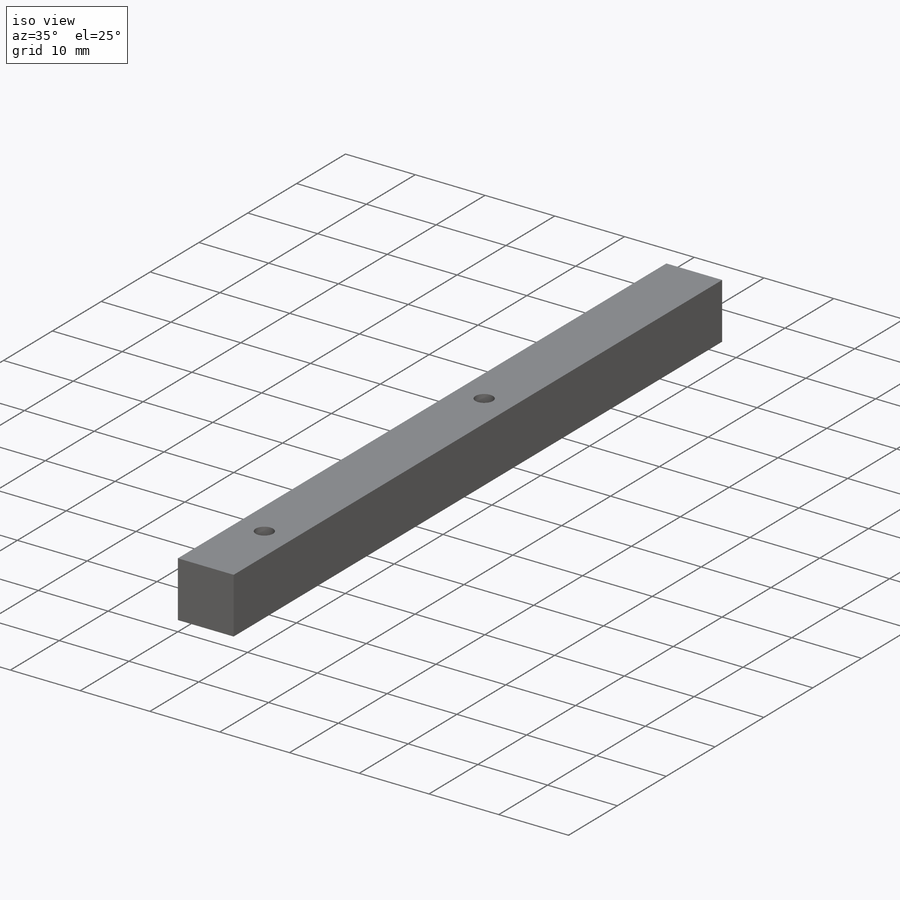
[diagram: iso view]
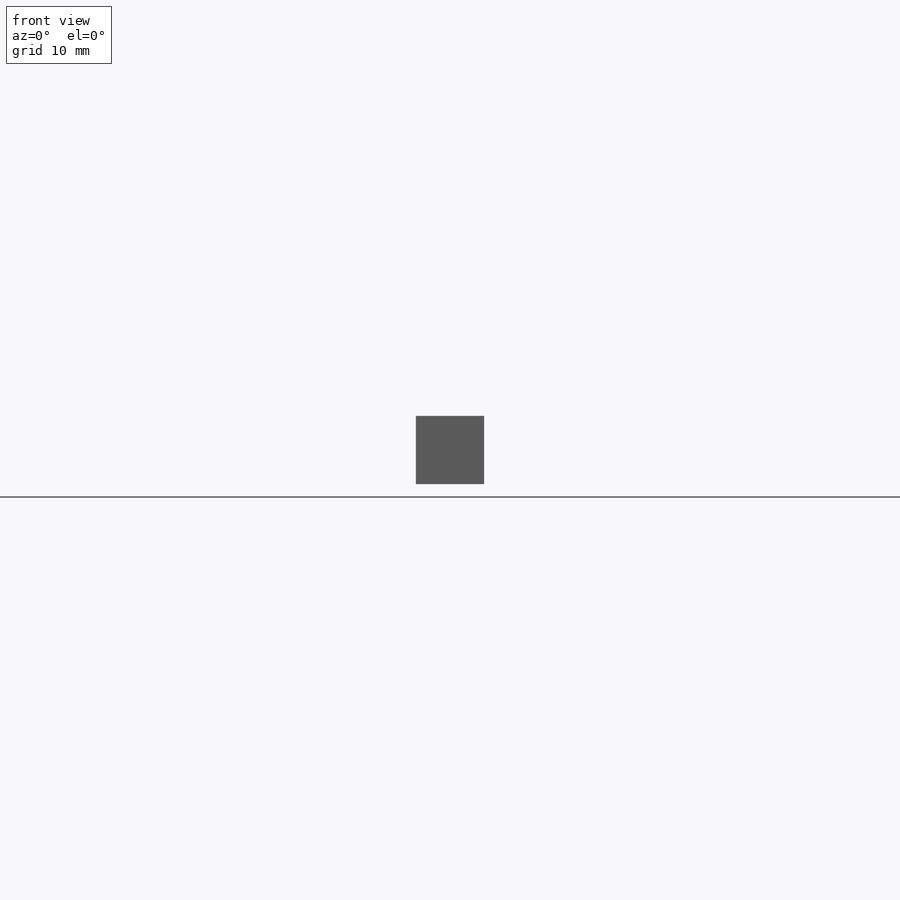
[diagram: front view]
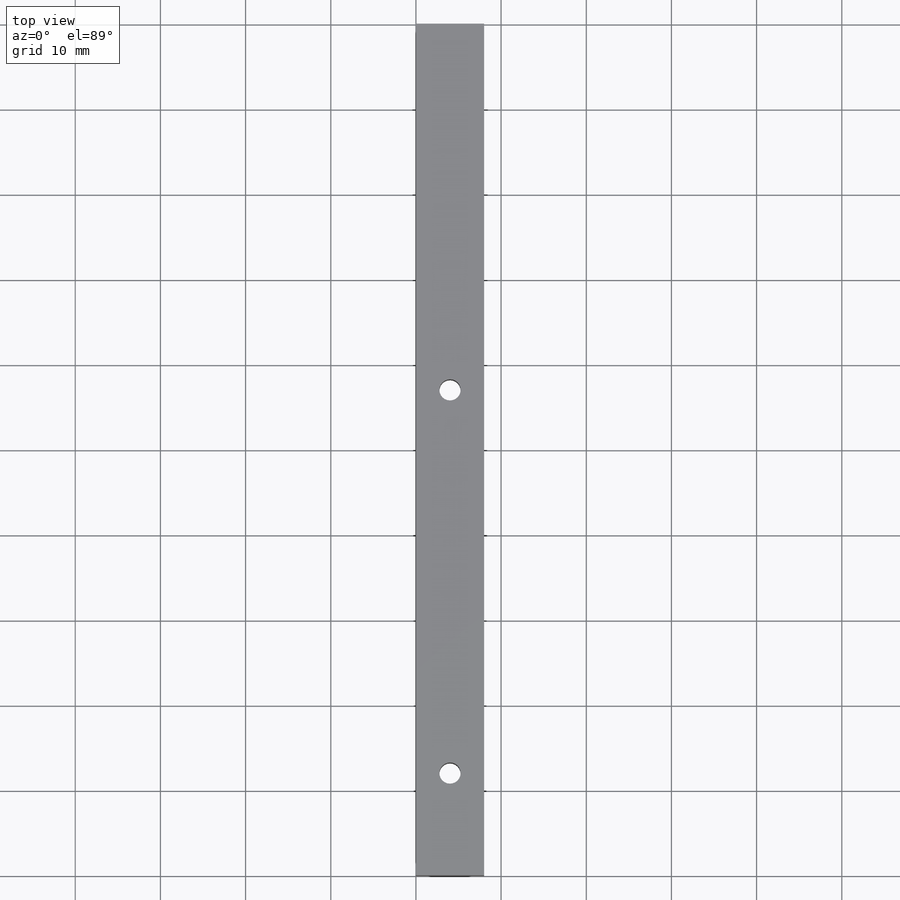
[diagram: top view]
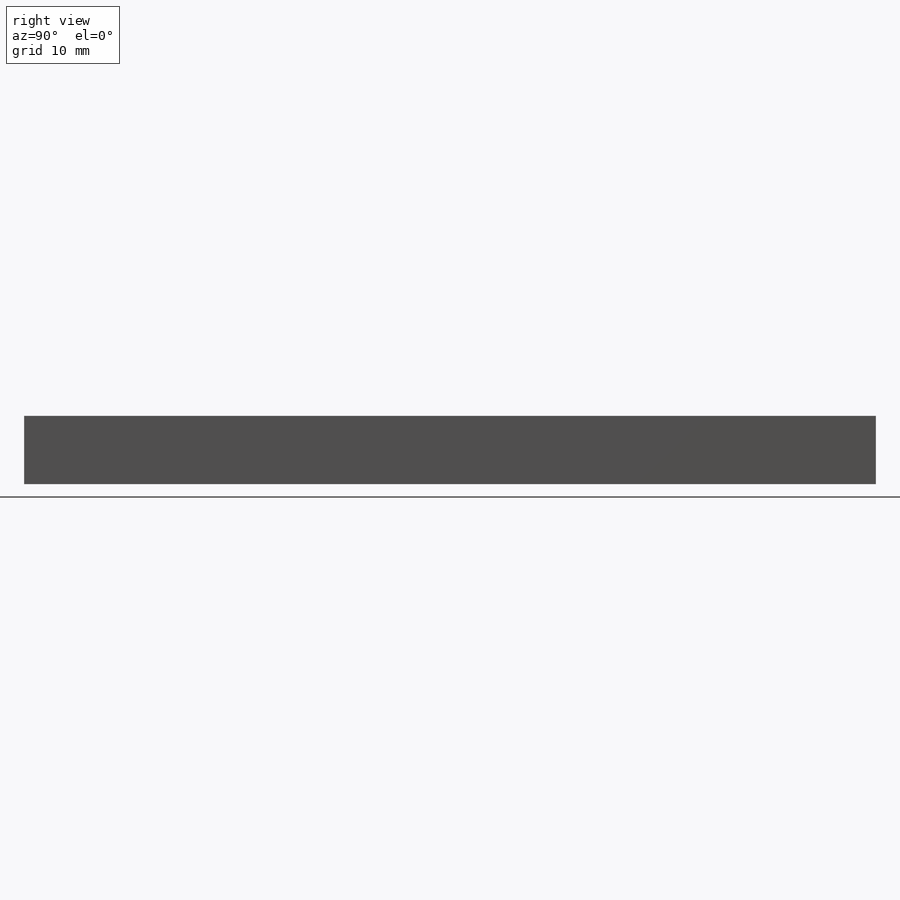
[diagram: right view]
SOLIDWORKS PART (.sldprt)
format: sldprt  version: not decoded by parser v0  size: 289,792 bytes
history: native  units: mm
features: sketch x8, thread x4, hole x2, material x1, extrude x1 (+13 scaffold rows collapsed)
feature tree (29):
  scaffold x13  (default folders/planes/origin — collapsed)
  material  "Material <not specified>"
  sketch  "Sketch1"  dims[D1=8.0mm]
  extrude  "Extrude1"  Depth=100mm
  sketch  "Sketch2"  dims[D1=45.0mm]
  hole  "M3 Tapped Hole1"  Diameter=2.5mm Depth=8mm
  sketch  "3DSketch1"
  sketch  "Sketch3"  dims[hole-wizard template sketch: 60 standard entries collapsed; hole parameters kept: c18.Thru Tap Drill Depth=8.0mm]
  thread  "Hole Thread1"  [2 undecoded]
  thread  "Hole Thread2"  [2 undecoded]
  sketch  "Sketch4"
  sketch  "Sketch5"
  hole  "M4 Tapped Hole1"  Diameter=3.3mm Depth=10mm
  sketch  "3DSketch2"
  sketch  "Sketch6"  dims[hole-wizard template sketch: 50 standard entries collapsed; hole parameters above]
  thread  "Hole Thread3"  [2 undecoded]
  thread  "Hole Thread4"  [2 undecoded]
decode coverage: 7 of 15 modeling features carry decoded parameters
note: ~ marks probable driven/reference dimensions
note: 8 parameter values undecoded
summary: no parameter record found for 4 features
note: suppression state not decoded; provenance and decode notes live in map.json
